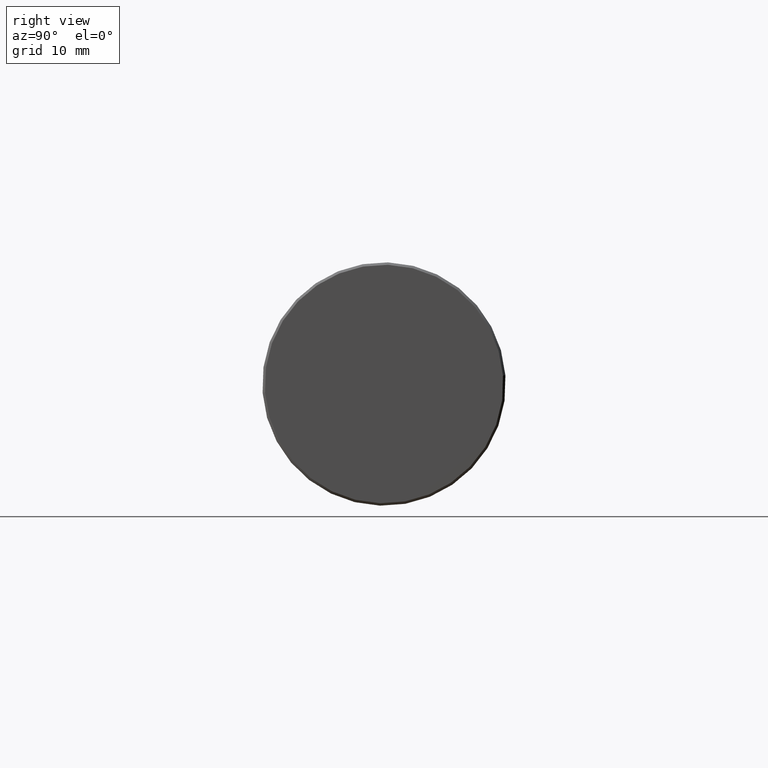
[diagram: clean part render]
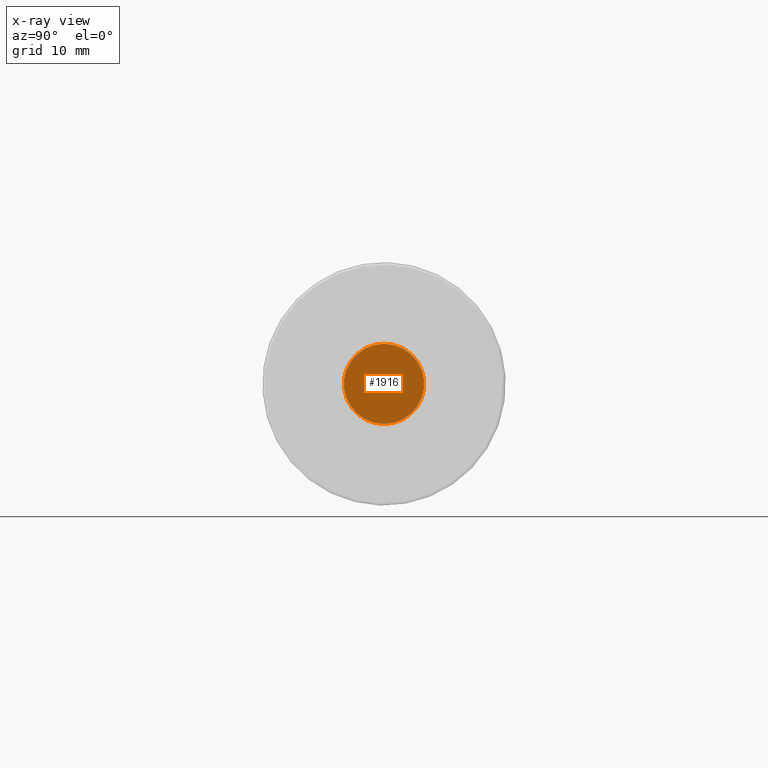
[diagram: x-ray — body ghosted, one internal face saturated and labeled with its STEP entity id]
A machine part, right view, then the same camera in x-ray: the body is ghosted and one INTERNAL B-rep face — a face not visible from any outside direction — is saturated and labeled: STEP entity #1916.
In plain terms, the highlighted planar face has unit normal (1, 0, -0).
Its self-contained STEP definition (entity closure, byte-faithful):
#122 = VERTEX_POINT ( 'NONE', #8423 ) ;
#252 = FACE_OUTER_BOUND ( 'NONE', #7412, .T. ) ;
#452 = EDGE_CURVE ( 'NONE', #122, #1758, #4638, .T. ) ;
#1145 = PLANE ( 'NONE',  #1552 ) ;
#1552 = AXIS2_PLACEMENT_3D ( 'NONE', #1841, #5185, #7253 ) ;
#1638 = EDGE_CURVE ( 'NONE', #1758, #122, #4177, .T. ) ;
#1706 = AXIS2_PLACEMENT_3D ( 'NONE', #2110, #6892, #8292 ) ;
#1758 = VERTEX_POINT ( 'NONE', #4083 ) ;
#1841 = CARTESIAN_POINT ( 'NONE',  ( -0.1938896942806700200, 1.233292430136084100, 1.027949227593007600 ) ) ;
#1916 = ADVANCED_FACE ( 'NONE', ( #252 ), #1145, .T. ) ;
#2110 = CARTESIAN_POINT ( 'NONE',  ( -0.1938896942806700200, 1.233292430136084100, 1.027949227593007600 ) ) ;
#2581 = AXIS2_PLACEMENT_3D ( 'NONE', #4028, #8791, #3288 ) ;
#3288 = DIRECTION ( 'NONE',  ( 0.0000000000000000000, 0.0000000000000000000, -1.000000000000000000 ) ) ;
#4028 = CARTESIAN_POINT ( 'NONE',  ( -0.1938896942806700200, 1.233292430136084100, 1.027949227593007600 ) ) ;
#4083 = CARTESIAN_POINT ( 'NONE',  ( -0.1938896942806700200, 1.233292430136084100, 0.8629492275930070700 ) ) ;
#4177 = CIRCLE ( 'NONE', #2581, 0.1650000000000005600 ) ;
#4638 = CIRCLE ( 'NONE', #1706, 0.1650000000000005600 ) ;
#5185 = DIRECTION ( 'NONE',  ( 1.000000000000000000, 0.0000000000000000000, -0.0000000000000000000 ) ) ;
#6191 = ORIENTED_EDGE ( 'NONE', *, *, #452, .T. ) ;
#6423 = ORIENTED_EDGE ( 'NONE', *, *, #1638, .T. ) ;
#6892 = DIRECTION ( 'NONE',  ( 1.000000000000000000, -0.0000000000000000000, -0.0000000000000000000 ) ) ;
#7253 = DIRECTION ( 'NONE',  ( -0.0000000000000000000, 0.0000000000000000000, -1.000000000000000000 ) ) ;
#7412 = EDGE_LOOP ( 'NONE', ( #6191, #6423 ) ) ;
#8292 = DIRECTION ( 'NONE',  ( 0.0000000000000000000, 0.0000000000000000000, -1.000000000000000000 ) ) ;
#8423 = CARTESIAN_POINT ( 'NONE',  ( -0.1938896942806700200, 1.233292430136084100, 1.192949227593008300 ) ) ;
#8791 = DIRECTION ( 'NONE',  ( 1.000000000000000000, -0.0000000000000000000, -0.0000000000000000000 ) ) ;